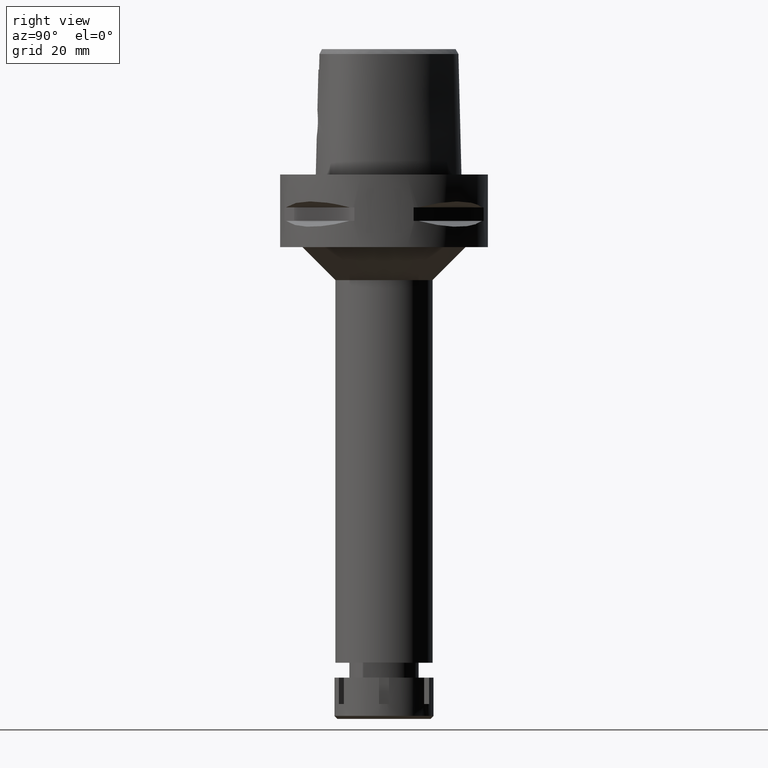
[diagram: clean part render]
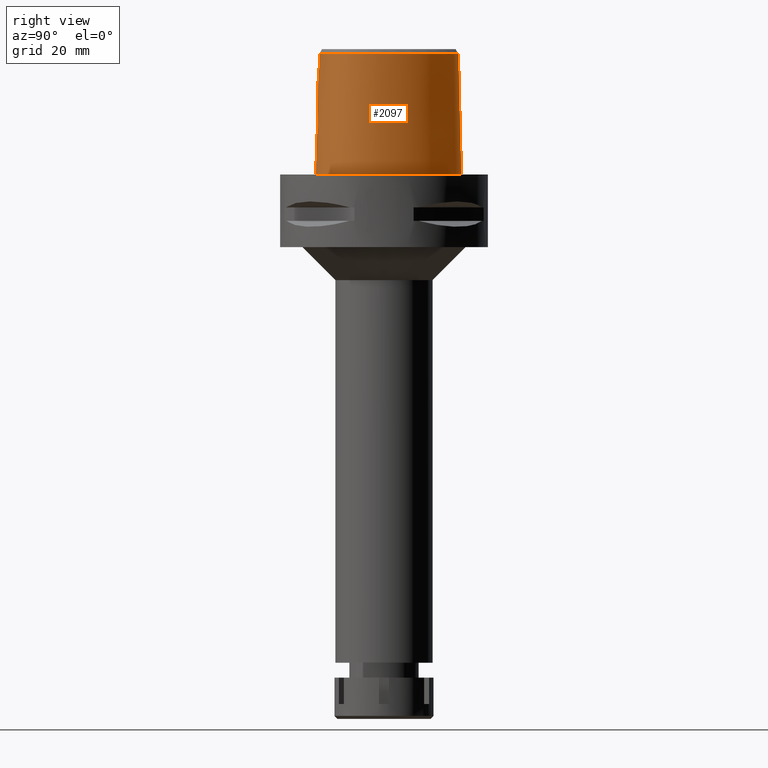
[diagram: same view with one face highlighted and labeled with its STEP entity id]
A machine part, right view. The second image highlights one B-rep face of the part: STEP entity #2097.
In plain terms, the highlighted face is a freeform B-spline surface patch.
Its self-contained STEP definition (entity closure, byte-faithful):
#9 = CARTESIAN_POINT ( 'NONE',  ( 4.049638794384611273, -20.05404294443376756, 15.43768675189062201 ) ) ;
#33 = CARTESIAN_POINT ( 'NONE',  ( 3.346839698137018093, -20.07044986577229650, 17.78445641054263859 ) ) ;
#37 = CARTESIAN_POINT ( 'NONE',  ( -0.4520500676069000301, -20.37458451791000158, 11.93048053677000020 ) ) ;
#65 = CARTESIAN_POINT ( 'NONE',  ( 19.86834436684000238, 4.339653687873999743, 37.25231677808000086 ) ) ;
#79 = CARTESIAN_POINT ( 'NONE',  ( 20.74942740880193526, 4.657187500000056879, 5.247538514829841461E-14 ) ) ;
#92 = CARTESIAN_POINT ( 'NONE',  ( 14.36818034194999960, -16.67825731690999902, 24.59139865742000097 ) ) ;
#103 = CARTESIAN_POINT ( 'NONE',  ( 21.55524826009751038, -8.996025390624708962, 5.247538514829841461E-14 ) ) ;
#117 = CARTESIAN_POINT ( 'NONE',  ( 21.99640701358000072, -0.2778990166448000454, -0.7304375838839000101 ) ) ;
#131 = CARTESIAN_POINT ( 'NONE',  ( 14.40795638957788327, 15.64093750000730765, 5.247538514829841461E-14 ) ) ;
#147 = CARTESIAN_POINT ( 'NONE',  ( 21.36961510885999971, -0.3886497729587999883, 24.59139865742000097 ) ) ;
#178 = CARTESIAN_POINT ( 'NONE',  ( 19.66427014433000053, -12.83600704532999970, -0.7304375838839000101 ) ) ;
#208 = CARTESIAN_POINT ( 'NONE',  ( -0.7217521646260000034, 23.47150798456999965, -0.7304375838839000101 ) ) ;
#223 = B_SPLINE_CURVE_WITH_KNOTS ( 'NONE', 3,
 ( #5394, #1516, #730, #4553 ),
 .UNSPECIFIED., .F., .F.,
 ( 4, 4 ),
 ( 0.0000000000000000000, 1.000000000000000000 ),
 .UNSPECIFIED. ) ;
#241 = CARTESIAN_POINT ( 'NONE',  ( 1.488283991415337182, -20.35025562760707629, 11.73330004244571612 ) ) ;
#267 = CARTESIAN_POINT ( 'NONE',  ( 7.108589361577945631, 20.52412316395161795, 36.52186680739947633 ) ) ;
#275 = CARTESIAN_POINT ( 'NONE',  ( 1.029075032816727298, -20.37061658179028711, 11.58059618244477029 ) ) ;
#277 = VERTEX_POINT ( 'NONE', #4362 ) ;
#305 = CARTESIAN_POINT ( 'NONE',  ( 3.507024072564136841, -20.16249844635295929, 13.46998661760523319 ) ) ;
#331 = CARTESIAN_POINT ( 'NONE',  ( -0.4685451983317999725, 23.16976078517999937, 11.93048053677000020 ) ) ;
#342 = EDGE_CURVE ( 'NONE', #3243, #2402, #4077, .T. ) ;
#353 = CARTESIAN_POINT ( 'NONE',  ( 3.671249151389730514, -19.60525176641679579, 34.94790639287000289 ) ) ;
#363 = CARTESIAN_POINT ( 'NONE',  ( 2.278271780665460433, -20.12965837756856047, 18.84858243060470073 ) ) ;
#365 = B_SPLINE_SURFACE_WITH_KNOTS ( 'NONE', 3, 3, ( 
 ( #1747, #2197, #3384, #4282 ),
 ( #423, #37, #3458, #4721 ),
 ( #5168, #1319, #3033, #902 ),
 ( #1917, #3536, #982, #3149 ),
 ( #2674, #4469, #3180, #4441 ),
 ( #2703, #525, #92, #3625 ),
 ( #5249, #3957, #4797, #3089 ),
 ( #4414, #2343, #552, #2282 ),
 ( #178, #497, #2254, #3512 ),
 ( #5276, #1374, #1801, #4886 ),
 ( #1829, #1888, #580, #1399 ),
 ( #2223, #2309, #1037, #3115 ),
 ( #3923, #1071, #2760, #4821 ),
 ( #950, #5338, #3984, #3213 ),
 ( #117, #4015, #147, #3595 ),
 ( #1854, #4356, #3564, #65 ),
 ( #5308, #5224, #1433, #4854 ),
 ( #1491, #614, #4048, #4917 ),
 ( #4383, #1008, #2728, #1461 ),
 ( #5004, #2034, #1158, #3737 ),
 ( #5453, #2823, #1642, #4195 ),
 ( #2430, #4558, #679, #1609 ),
 ( #649, #4142, #3324, #5482 ),
 ( #4530, #331, #2400, #706 ),
 ( #208, #2882, #5037, #4080 ) ),
 .UNSPECIFIED., .F., .F., .F.,
 ( 4, 1, 1, 1, 1, 1, 1, 1, 1, 1, 1, 1, 1, 1, 1, 1, 1, 1, 1, 1, 1, 1, 4 ),
 ( 4, 4 ),
 ( -0.008985960173571999957, 0.0000000000000000000, 0.08333333333337000770, 0.1666666666667000196, 0.2083333333333000081, 0.2500000000000000000, 0.2916666666666999919, 0.3124999999998999689, 0.3333333333332000326, 0.3541666666666000163, 0.3749999999998999689, 0.4166666666666000163, 0.4583333333332000326, 0.4999999999998999689, 0.5833333333331000015, 0.6666666666664999852, 0.7499999999998000488, 0.8333333333329999704, 0.8749999999997000177, 0.9166666666664000651, 0.9583333333329999704, 1.000000000000000000, 1.011710456763000199 ),
 ( 3.722950517314999950E-09, 0.9999998101296000419 ),
 .UNSPECIFIED. ) ;
#390 = CARTESIAN_POINT ( 'NONE',  ( 2.306577398820751412, -20.12825059843537190, 18.82915933036016298 ) ) ;
#407 = CARTESIAN_POINT ( 'NONE',  ( 14.22011350745966496, -16.41829354687769538, 36.52186680739947633 ) ) ;
#415 = CARTESIAN_POINT ( 'NONE',  ( 2.360818685576765663, -20.12553152717674010, 18.79091723954073601 ) ) ;
#423 = CARTESIAN_POINT ( 'NONE',  ( -0.4561077449369999592, -20.69106755381000085, -0.7304375838839000101 ) ) ;
#442 = CARTESIAN_POINT ( 'NONE',  ( 2.519944104988522060, -20.11739423957299167, 18.67124364917522783 ) ) ;
#456 = CARTESIAN_POINT ( 'NONE',  ( 3.796788964451000297E-11, 23.47499999999000053, 6.972200594645999482E-14 ) ) ;
#482 = CARTESIAN_POINT ( 'NONE',  ( 14.67337964420057617, -17.21410156249941892, 5.247538514829841461E-14 ) ) ;
#497 = CARTESIAN_POINT ( 'NONE',  ( 19.40779772571000095, -12.64961930136999868, 11.93048053677000020 ) ) ;
#525 = CARTESIAN_POINT ( 'NONE',  ( 14.52531265598000054, -16.95413752255999995, 11.93048053677000020 ) ) ;
#552 = CARTESIAN_POINT ( 'NONE',  ( 18.12052909021999980, -13.74516032104000018, 24.59139865742000097 ) ) ;
#556 = CARTESIAN_POINT ( 'NONE',  ( 3.736696120837999402, -19.67778323291999953, 31.80000004972999861 ) ) ;
#558 = CARTESIAN_POINT ( 'NONE',  ( -6.936546298697000348E-13, -20.38876923348000147, 11.44999999999999929 ) ) ;
#580 = CARTESIAN_POINT ( 'NONE',  ( 20.36913779878999975, -10.35391845994999827, 24.59139865742000097 ) ) ;
#604 = CARTESIAN_POINT ( 'NONE',  ( 20.67704204634530640, -8.734985285292992785, 36.52186680739947633 ) ) ;
#614 = CARTESIAN_POINT ( 'NONE',  ( 14.17879762240999852, 15.44741198412000038, 11.93048053677000020 ) ) ;
#649 = CARTESIAN_POINT ( 'NONE',  ( 0.6155340739163999153, 23.51883497514999988, -0.7304375838839000101 ) ) ;
#679 = CARTESIAN_POINT ( 'NONE',  ( 2.438150623175999954, 22.68791648783000170, 24.59139865742000097 ) ) ;
#706 = CARTESIAN_POINT ( 'NONE',  ( -0.4431573443658999856, 22.53713883459999678, 37.25231677808000086 ) ) ;
#729 = CARTESIAN_POINT ( 'NONE',  ( 19.55745538000554262, -11.29150212657557084, 36.52186680739947633 ) ) ;
#730 = CARTESIAN_POINT ( 'NONE',  ( 6.841552641078787438E-09, -20.08420636276018101, 23.63333344114130341 ) ) ;
#738 = CARTESIAN_POINT ( 'NONE',  ( 3.438614496833577228, -20.17221373686729535, 13.35618706787884946 ) ) ;
#765 = CARTESIAN_POINT ( 'NONE',  ( 1.512241740947312119, -20.34898939911309412, 11.74291348788425182 ) ) ;
#774 = VERTEX_POINT ( 'NONE', #1432 ) ;
#791 = CARTESIAN_POINT ( 'NONE',  ( 3.828843160387038314, -20.04436026481759825, 16.82309517697779810 ) ) ;
#823 = CARTESIAN_POINT ( 'NONE',  ( 3.918450559639469866, -20.04172061130668325, 16.53268210946603389 ) ) ;
#841 = CARTESIAN_POINT ( 'NONE',  ( 4.467522181835872352, -19.48130276147545814, 36.52186680739947633 ) ) ;
#848 = CARTESIAN_POINT ( 'NONE',  ( 2.915472835977094945, -20.09569895789859473, 18.31126718064890113 ) ) ;
#871 = CARTESIAN_POINT ( 'NONE',  ( 2.963663714774202873, -20.09292616174766977, 18.26078922981426444 ) ) ;
#875 = VECTOR ( 'NONE', #1590, 1000.000000000000114 ) ;
#902 = CARTESIAN_POINT ( 'NONE',  ( 1.836480386890999794, -19.76356528382999755, 37.25231677808000086 ) ) ;
#911 = CARTESIAN_POINT ( 'NONE',  ( 2.113823673067833475, -20.67499999999701288, 5.247538514829841461E-14 ) ) ;
#950 = CARTESIAN_POINT ( 'NONE',  ( 22.26285556298000046, -4.100361500063000264, -0.7304375838839000101 ) ) ;
#963 = CARTESIAN_POINT ( 'NONE',  ( 6.341471019211397220, -20.29812500000326736, 5.247538514829842092E-14 ) ) ;
#982 = CARTESIAN_POINT ( 'NONE',  ( 6.232237598194000583, -19.68961187433999882, 24.59139865742000097 ) ) ;
#1008 = CARTESIAN_POINT ( 'NONE',  ( 10.55288408568000058, 18.94467590724999795, 11.93048053677000020 ) ) ;
#1021 = CARTESIAN_POINT ( 'NONE',  ( 11.23259756728058711, -18.89324218749616335, 5.247538514829841461E-14 ) ) ;
#1031 = CARTESIAN_POINT ( 'NONE',  ( 21.32871516739703210, -4.105831245034191390, 36.52186680739947633 ) ) ;
#1037 = CARTESIAN_POINT ( 'NONE',  ( 20.96392254227999885, -8.820258326754998990, 24.59139865742000097 ) ) ;
#1071 = CARTESIAN_POINT ( 'NONE',  ( 21.76083716647999822, -6.805026050990000464, 11.93048053677000020 ) ) ;
#1080 = LINE ( 'NONE', #558, #4128 ) ;
#1103 = CARTESIAN_POINT ( 'NONE',  ( 3.714884036183550897, -20.13054316305255043, 13.88679975161858771 ) ) ;
#1127 = CARTESIAN_POINT ( 'NONE',  ( 4.757642236484984188, 21.67478320247553825, 36.52186680739947633 ) ) ;
#1132 = CARTESIAN_POINT ( 'NONE',  ( 1.538196023384282407, -20.34760033576342408, 11.75346900688112228 ) ) ;
#1158 = CARTESIAN_POINT ( 'NONE',  ( 7.259695479713999866, 20.78233571862999796, 24.59139865742000097 ) ) ;
#1187 = B_SPLINE_CURVE_WITH_KNOTS ( 'NONE', 3,
 ( #4110, #2910, #3711, #2370, #275, #4617, #3351, #3770, #241, #765, #2484, #1132, #3295, #5064, #3246, #2794, #2007, #5425, #4502, #1945, #1582, #1525, #1978, #2849, #3655, #4589, #738, #305, #5367, #4954, #3688, #1103, #3270, #2458, #5399, #1553, #4169, #1240, #4668, #4302, #3005, #9, #1670, #4641, #1293, #1742, #823, #4716, #791, #3477, #5163, #2540, #2566, #5508, #4328, #5115, #33, #1767, #1216, #3377, #2090, #871, #848, #1692, #2934, #4251, #2511, #3893, #442, #4223, #415, #390, #363, #2617, #3454, #1313, #3795, #5561, #5089, #2981, #2957, #2171 ),
 .UNSPECIFIED., .F., .F.,
 ( 4, 2, 2, 1, 1, 1, 2, 2, 2, 2, 2, 1, 1, 2, 2, 2, 2, 1, 1, 2, 2, 2, 2, 1, 2, 2, 2, 2, 1, 1, 1, 2, 2, 2, 2, 2, 1, 1, 2, 2, 2, 1, 2, 2, 2, 2, 2, 4 ),
 ( 0.0000000000000000000, 0.06249999999999680811, 0.09374999999999525380, 0.1093749999999945044, 0.1171874999999941436, 0.1210937499999939770, 0.1230468749999939909, 0.1249999999999940048, 0.1874999999999988620, 0.2187500000000011380, 0.2343750000000023315, 0.2421875000000029143, 0.2460937500000032196, 0.2480468750000034972, 0.2500000000000037748, 0.3125000000000161537, 0.3437500000000225375, 0.3593750000000257017, 0.3671875000000273115, 0.3710937500000281442, 0.3750000000000289213, 0.4375000000000430211, 0.4687500000000503486, 0.4843750000000539568, 0.4921875000000559552, 0.5000000000000579536, 0.5625000000000732747, 0.5937500000000809353, 0.6093750000000843769, 0.6171875000000860423, 0.6210937500000864864, 0.6230468750000863754, 0.6250000000000862643, 0.6875000000000813793, 0.7187500000000788258, 0.7343750000000773825, 0.7421875000000767164, 0.7460937500000764944, 0.7480468750000761613, 0.7500000000000758282, 0.7812500000000663913, 0.7968750000000615064, 0.8046875000000591749, 0.8125000000000567324, 0.8437500000000472955, 0.8593750000000425215, 0.8750000000000376366, 1.000000000000000000 ),
 .UNSPECIFIED. ) ;
#1216 = CARTESIAN_POINT ( 'NONE',  ( 3.128908175272120396, -20.08331652991464011, 18.07252174272647949 ) ) ;
#1218 = EDGE_CURVE ( 'NONE', #277, #1444, #4143, .T. ) ;
#1240 = CARTESIAN_POINT ( 'NONE',  ( 4.020733927300638832, -20.06862206084555922, 14.99753541347952002 ) ) ;
#1243 = EDGE_CURVE ( 'NONE', #3243, #1444, #5140, .T. ) ;
#1260 = CARTESIAN_POINT ( 'NONE',  ( 10.91891095220970698, -18.03046396093464310, 36.52186680739947633 ) ) ;
#1293 = CARTESIAN_POINT ( 'NONE',  ( 4.026066118139421057, -20.04247127186134492, 16.01314433202412246 ) ) ;
#1313 = CARTESIAN_POINT ( 'NONE',  ( 1.857884076962269537, -20.14843429220476168, 19.09932929553219338 ) ) ;
#1319 = CARTESIAN_POINT ( 'NONE',  ( 1.870063864393999964, -20.39691455660999964, 11.93048053677000020 ) ) ;
#1330 = CARTESIAN_POINT ( 'NONE',  ( -5.544119294011000731E-12, -20.67499999999999716, 7.264559324463998182E-14 ) ) ;
#1374 = CARTESIAN_POINT ( 'NONE',  ( 20.09084477999000029, -11.59945464139999949, 11.93048053677000020 ) ) ;
#1385 = CARTESIAN_POINT ( 'NONE',  ( 2.564517726975040102, 23.29328124999458538, 5.247538514829841461E-14 ) ) ;
#1399 = CARTESIAN_POINT ( 'NONE',  ( 20.07948506994999960, -10.22500070541000028, 37.25231677808000086 ) ) ;
#1407 = DIRECTION ( 'NONE',  ( -4.234890661638874812E-13, -0.02499051295389925070, -0.9996876883618708298 ) ) ;
#1432 = CARTESIAN_POINT ( 'NONE',  ( -5.544119294011000731E-12, -20.67499999999999716, 7.264559324463998182E-14 ) ) ;
#1433 = CARTESIAN_POINT ( 'NONE',  ( 17.53318585911999961, 10.12278934538000108, 24.59139865742000097 ) ) ;
#1444 = VERTEX_POINT ( 'NONE', #1633 ) ;
#1449 = CARTESIAN_POINT ( 'NONE',  ( 16.95889172594192829, -15.67838867187615293, 5.247538514829841461E-14 ) ) ;
#1461 = CARTESIAN_POINT ( 'NONE',  ( 10.14358078383000006, 18.45723421040999668, 37.25231677808000086 ) ) ;
#1491 = CARTESIAN_POINT ( 'NONE',  ( 14.42198651818000066, 15.65278600097999906, -0.7304375838839000101 ) ) ;
#1515 = ORIENTED_EDGE ( 'NONE', *, *, #1243, .F. ) ;
#1516 = CARTESIAN_POINT ( 'NONE',  ( 6.821577918709970238E-09, -19.98212988583128791, 27.71666688228296138 ) ) ;
#1518 = VERTEX_POINT ( 'NONE', #3541 ) ;
#1525 = CARTESIAN_POINT ( 'NONE',  ( 2.830086815859693239, -20.24589955386399964, 12.60289630791792703 ) ) ;
#1553 = CARTESIAN_POINT ( 'NONE',  ( 3.927835586672352441, -20.09244225005366147, 14.47776275463072437 ) ) ;
#1560 = EDGE_CURVE ( 'NONE', #5390, #774, #1080, .T. ) ;
#1575 = CARTESIAN_POINT ( 'NONE',  ( 19.88562079788709624, 4.345879946636352464, 36.52186680739947633 ) ) ;
#1582 = CARTESIAN_POINT ( 'NONE',  ( 2.808534909594999185, -20.24816297014837119, 12.58189563908294772 ) ) ;
#1590 = DIRECTION ( 'NONE',  ( 1.535577709270960426E-12, 0.02499051290971940689, -0.9996876883629751687 ) ) ;
#1609 = CARTESIAN_POINT ( 'NONE',  ( 2.373090332120999957, 22.37624354097000179, 37.25231677808000086 ) ) ;
#1633 = CARTESIAN_POINT ( 'NONE',  ( 3.637738219117000238, -19.56971420299000286, 36.52185956443999970 ) ) ;
#1642 = CARTESIAN_POINT ( 'NONE',  ( 4.868968453718999889, 21.95285545620999557, 24.59139865742000097 ) ) ;
#1670 = CARTESIAN_POINT ( 'NONE',  ( 4.049992771143990922, -20.05325330546017426, 15.46728849813523610 ) ) ;
#1675 = FACE_OUTER_BOUND ( 'NONE', #3819, .T. ) ;
#1692 = CARTESIAN_POINT ( 'NONE',  ( 2.894397137079437687, -20.09690797886509017, 18.33285490821691965 ) ) ;
#1742 = CARTESIAN_POINT ( 'NONE',  ( 3.950314841473462124, -20.04137577208483734, 16.40278404201346873 ) ) ;
#1747 = CARTESIAN_POINT ( 'NONE',  ( -0.6840631435738999677, -20.68668116151999925, -0.7304375838839000101 ) ) ;
#1767 = CARTESIAN_POINT ( 'NONE',  ( 3.266229437020721438, -20.07524359687617377, 17.89916302261439540 ) ) ;
#1801 = CARTESIAN_POINT ( 'NONE',  ( 19.81622831692000020, -11.44090475192999889, 24.59139865742000097 ) ) ;
#1805 = CARTESIAN_POINT ( 'NONE',  ( 2.503154195452158337, -19.81241979350688709, 31.80000012137769971 ) ) ;
#1812 = CARTESIAN_POINT ( 'NONE',  ( 5.098437017283345973, 22.52602539062325704, 5.247538514829841461E-14 ) ) ;
#1829 = CARTESIAN_POINT ( 'NONE',  ( 20.94844325647000360, -10.61175396900999957, -0.7304375838839000101 ) ) ;
#1854 = CARTESIAN_POINT ( 'NONE',  ( 20.76670354688000231, 4.663413653178999141, -0.7304375838839000101 ) ) ;
#1870 = CARTESIAN_POINT ( 'NONE',  ( 0.8548392423472973567, 23.47500000000328413, 5.247538514829841461E-14 ) ) ;
#1888 = CARTESIAN_POINT ( 'NONE',  ( 20.65879052763000345, -10.48283621448000069, 11.93048053677000020 ) ) ;
#1917 = CARTESIAN_POINT ( 'NONE',  ( 6.344715576272000668, -20.31619964730000305, -0.7304375838839000101 ) ) ;
#1945 = CARTESIAN_POINT ( 'NONE',  ( 2.758139611129263091, -20.25337176693246732, 12.53387256028085517 ) ) ;
#1978 = CARTESIAN_POINT ( 'NONE',  ( 2.844443223519995456, -20.24438370416207889, 12.61699047241434890 ) ) ;
#2007 = CARTESIAN_POINT ( 'NONE',  ( 2.570157103600570814, -20.27168289956678393, 12.36915238101241243 ) ) ;
#2034 = CARTESIAN_POINT ( 'NONE',  ( 7.420053159329000003, 21.05635748973000076, 11.93048053677000020 ) ) ;
#2090 = CARTESIAN_POINT ( 'NONE',  ( 3.003300070330046090, -20.09063219836847480, 18.21738618656902986 ) ) ;
#2097 = ADVANCED_FACE ( 'NONE', ( #1675 ), #365, .T. ) ;
#2115 = EDGE_CURVE ( 'NONE', #5390, #1518, #1187, .T. ) ;
#2171 = CARTESIAN_POINT ( 'NONE',  ( 0.0000000000000000000, -20.18628283968999781, 19.55000000000000071 ) ) ;
#2184 = CARTESIAN_POINT ( 'NONE',  ( 19.64947365864038176, -12.82525390625538364, 5.247538514829841461E-14 ) ) ;
#2197 = CARTESIAN_POINT ( 'NONE',  ( -0.6779734145189999506, -20.37023488106000002, 11.93048053677000020 ) ) ;
#2223 = CARTESIAN_POINT ( 'NONE',  ( 21.57281239033000020, -9.001246194501998588, -0.7304375838839000101 ) ) ;
#2254 = CARTESIAN_POINT ( 'NONE',  ( 19.15132530708999781, -12.46323155740999944, 24.59139865742000097 ) ) ;
#2282 = CARTESIAN_POINT ( 'NONE',  ( 17.88993660326999802, -13.52675024964000094, 37.25231677808000086 ) ) ;
#2285 = CARTESIAN_POINT ( 'NONE',  ( 2.041042029990999821E-08, -19.88004246002000031, 31.80000004972000127 ) ) ;
#2304 = CARTESIAN_POINT ( 'NONE',  ( -6.936546298697000348E-13, -20.38876923348000147, 11.44999999999999929 ) ) ;
#2309 = CARTESIAN_POINT ( 'NONE',  ( 21.26836746629999908, -8.910752260628999721, 11.93048053677000020 ) ) ;
#2333 = CARTESIAN_POINT ( 'NONE',  ( 18.90964962507914393, -12.28759713487687577, 36.52186680739947633 ) ) ;
#2343 = CARTESIAN_POINT ( 'NONE',  ( 18.35112157717000159, -13.96357039245000031, 11.93048053677000020 ) ) ;
#2365 = CARTESIAN_POINT ( 'NONE',  ( -1.813179551047000202E-11, 22.56201468012000078, 36.52186680743999858 ) ) ;
#2370 = CARTESIAN_POINT ( 'NONE',  ( 0.8992242105118642970, -20.37493864171640112, 11.54888304297134027 ) ) ;
#2400 = CARTESIAN_POINT ( 'NONE',  ( -0.4558512713489000223, 22.85344980989000163, 24.59139865742000097 ) ) ;
#2402 = VERTEX_POINT ( 'NONE', #3204 ) ;
#2410 = EDGE_CURVE ( 'NONE', #2402, #1518, #223, .T. ) ;
#2430 = CARTESIAN_POINT ( 'NONE',  ( 2.568271205285999947, 23.31126238154999797, -0.7304375838839000101 ) ) ;
#2451 = CARTESIAN_POINT ( 'NONE',  ( 17.27359236348845783, 9.972912859139666963, 36.52186680739947633 ) ) ;
#2458 = CARTESIAN_POINT ( 'NONE',  ( 3.734101483925078124, -20.12735841093752498, 13.93178299878139015 ) ) ;
#2484 = CARTESIAN_POINT ( 'NONE',  ( 1.528203702475598114, -20.34813849356515192, 11.74937770678980264 ) ) ;
#2511 = CARTESIAN_POINT ( 'NONE',  ( 2.772180003756187894, -20.10389984255201767, 18.45552640414263479 ) ) ;
#2540 = CARTESIAN_POINT ( 'NONE',  ( 3.756069937840027961, -20.04746516202720841, 17.01476473572080295 ) ) ;
#2559 = CARTESIAN_POINT ( 'NONE',  ( 3.637738219117000238, -19.56971420299000286, 36.52185956443999970 ) ) ;
#2566 = CARTESIAN_POINT ( 'NONE',  ( 3.749619629275788846, -20.04776342526934485, 17.03066201961066994 ) ) ;
#2578 = ORIENTED_EDGE ( 'NONE', *, *, #1560, .T. ) ;
#2617 = CARTESIAN_POINT ( 'NONE',  ( 2.145109563004964581, -20.13623476436783832, 18.93764899034225735 ) ) ;
#2635 = CARTESIAN_POINT ( 'NONE',  ( 20.93173252211384749, -10.60431640624865146, 5.247538514829841461E-14 ) ) ;
#2662 = CARTESIAN_POINT ( 'NONE',  ( 18.06826688526421520, 10.43171875000094850, 5.247538514829841461E-14 ) ) ;
#2674 = CARTESIAN_POINT ( 'NONE',  ( 11.23887130171000059, -18.91049775788000176, -0.7304375838839000101 ) ) ;
#2689 = CARTESIAN_POINT ( 'NONE',  ( 20.34961798556575729, -11.74885742187154847, 5.247538514829841461E-14 ) ) ;
#2703 = CARTESIAN_POINT ( 'NONE',  ( 14.68244497000999971, -17.23001772821000088, -0.7304375838839000101 ) ) ;
#2714 = CARTESIAN_POINT ( 'NONE',  ( 18.56841065141134095, -14.16937988280768224, 5.247538514829841461E-14 ) ) ;
#2728 = CARTESIAN_POINT ( 'NONE',  ( 10.34823243475999988, 18.70095505882999731, 24.59139865742000097 ) ) ;
#2744 = ORIENTED_EDGE ( 'NONE', *, *, #2854, .T. ) ;
#2760 = CARTESIAN_POINT ( 'NONE',  ( 21.44619304421999928, -6.759806566837999853, 24.59139865742000097 ) ) ;
#2794 = CARTESIAN_POINT ( 'NONE',  ( 2.397021025743683253, -20.28738711155108021, 12.23221059366157881 ) ) ;
#2823 = CARTESIAN_POINT ( 'NONE',  ( 4.987110684465000610, 22.24795284819000329, 11.93048053677000020 ) ) ;
#2843 = CARTESIAN_POINT ( 'NONE',  ( 10.15538781006591584, 18.47129526703211866, 36.52186680739947633 ) ) ;
#2849 = CARTESIAN_POINT ( 'NONE',  ( 2.852894669148333673, -20.24348581819178250, 12.62535896507192490 ) ) ;
#2854 = EDGE_CURVE ( 'NONE', #774, #4100, #4170, .T. ) ;
#2882 = CARTESIAN_POINT ( 'NONE',  ( -0.7025952887292000737, 23.15559749866999795, 11.93048053677000020 ) ) ;
#2910 = CARTESIAN_POINT ( 'NONE',  ( 0.2521712344239960824, -20.38876923348000858, 11.44999999999999751 ) ) ;
#2925 = CARTESIAN_POINT ( 'NONE',  ( 3.796788964451000297E-11, 23.47499999999000053, 6.972200594645999482E-14 ) ) ;
#2934 = CARTESIAN_POINT ( 'NONE',  ( 2.880252252186726203, -20.09771858834476532, 18.34723526985665387 ) ) ;
#2950 = CARTESIAN_POINT ( 'NONE',  ( 7.300578979382321698, -19.07170738131226173, 36.52186680739947633 ) ) ;
#2957 = CARTESIAN_POINT ( 'NONE',  ( 0.4954876483524821573, -20.18628283969000492, 19.54999999999999716 ) ) ;
#2981 = CARTESIAN_POINT ( 'NONE',  ( 1.028316776408453537, -20.17741541788669934, 19.45785258273985008 ) ) ;
#3005 = CARTESIAN_POINT ( 'NONE',  ( 4.048214080092304101, -20.05577732092616827, 15.37582243512925650 ) ) ;
#3033 = CARTESIAN_POINT ( 'NONE',  ( 1.853272125641999946, -20.08023992022000215, 24.59139865742000097 ) ) ;
#3050 = ORIENTED_EDGE ( 'NONE', *, *, #2115, .F. ) ;
#3065 = CARTESIAN_POINT ( 'NONE',  ( 1.251533272183256829, -19.88005341395084002, 31.80000012137769971 ) ) ;
#3089 = CARTESIAN_POINT ( 'NONE',  ( 16.38077695835999847, -14.94316464529999955, 37.25231677808000086 ) ) ;
#3115 = CARTESIAN_POINT ( 'NONE',  ( 20.65947761826000217, -8.729764392881000035, 37.25231677808000086 ) ) ;
#3149 = CARTESIAN_POINT ( 'NONE',  ( 6.175998609154999208, -19.37631798785999848, 37.25231677808000086 ) ) ;
#3180 = CARTESIAN_POINT ( 'NONE',  ( 11.02138184150000022, -18.31230465124999895, 24.59139865742000097 ) ) ;
#3204 = CARTESIAN_POINT ( 'NONE',  ( 2.041042029990999821E-08, -19.88004246002000031, 31.80000004972000127 ) ) ;
#3213 = CARTESIAN_POINT ( 'NONE',  ( 21.31039837235000078, -4.105938496789999448, 37.25231677808000086 ) ) ;
#3243 = VERTEX_POINT ( 'NONE', #4387 ) ;
#3246 = CARTESIAN_POINT ( 'NONE',  ( 2.282426779291145458, -20.29697268062908577, 12.15178042133221048 ) ) ;
#3270 = CARTESIAN_POINT ( 'NONE',  ( 3.728050960354355237, -20.12836678376847033, 13.91746580426512736 ) ) ;
#3295 = CARTESIAN_POINT ( 'NONE',  ( 1.734698794257270249, -20.33694537581526518, 11.83451168615765603 ) ) ;
#3324 = CARTESIAN_POINT ( 'NONE',  ( 0.5826623333973001140, 22.88447448257999994, 24.59139865742000097 ) ) ;
#3351 = CARTESIAN_POINT ( 'NONE',  ( 1.319918021587722201, -20.35862286549530964, 11.67005492354040719 ) ) ;
#3377 = CARTESIAN_POINT ( 'NONE',  ( 3.080402072178444861, -20.08615456365791729, 18.13051688291887942 ) ) ;
#3384 = CARTESIAN_POINT ( 'NONE',  ( -0.6718836854641999645, -20.05378860058999990, 24.59139865742000097 ) ) ;
#3424 = CARTESIAN_POINT ( 'NONE',  ( 16.39211273426746018, -14.95758104715374870, 36.52186680739947633 ) ) ;
#3454 = CARTESIAN_POINT ( 'NONE',  ( 2.033286809333374467, -20.14125756236685305, 19.00511957505245419 ) ) ;
#3458 = CARTESIAN_POINT ( 'NONE',  ( -0.4479923902767999899, -20.05810148200000143, 24.59139865742000097 ) ) ;
#3477 = CARTESIAN_POINT ( 'NONE',  ( 3.787481123649921066, -20.04605982308304135, 16.93510773912660028 ) ) ;
#3512 = CARTESIAN_POINT ( 'NONE',  ( 18.89485288846999822, -12.27684381345000020, 37.25231677808000086 ) ) ;
#3536 = CARTESIAN_POINT ( 'NONE',  ( 6.288476587232999293, -20.00290576081999916, 11.93048053677000020 ) ) ;
#3541 = CARTESIAN_POINT ( 'NONE',  ( 0.0000000000000000000, -20.18628283968999781, 19.55000000000000071 ) ) ;
#3548 = CARTESIAN_POINT ( 'NONE',  ( 22.24453907854481116, -4.100468750000057838, 5.247538514829841461E-14 ) ) ;
#3564 = CARTESIAN_POINT ( 'NONE',  ( 20.16779742685000087, 4.447573676309000135, 24.59139865742000097 ) ) ;
#3595 = CARTESIAN_POINT ( 'NONE',  ( 21.05621915649999920, -0.4440251511157999875, 37.25231677808000086 ) ) ;
#3625 = CARTESIAN_POINT ( 'NONE',  ( 14.21104802792000044, -16.40237711126000164, 37.25231677808000086 ) ) ;
#3655 = CARTESIAN_POINT ( 'NONE',  ( 3.047166273135561099, -20.22275119218791062, 12.81895386053285613 ) ) ;
#3680 = CARTESIAN_POINT ( 'NONE',  ( 0.7901461619506148226, 22.56201467849305331, 36.52186680739947633 ) ) ;
#3688 = CARTESIAN_POINT ( 'NONE',  ( 3.694855246837426943, -20.13382494402488021, 13.84093642423405512 ) ) ;
#3704 = CARTESIAN_POINT ( 'NONE',  ( 13.70645019738629067, 15.04851265230015223, 36.52186680739947633 ) ) ;
#3711 = CARTESIAN_POINT ( 'NONE',  ( 0.5103796633626155321, -20.38531158553910672, 11.47362071399299488 ) ) ;
#3737 = CARTESIAN_POINT ( 'NONE',  ( 7.099337800098999729, 20.50831394753000225, 37.25231677808000086 ) ) ;
#3770 = CARTESIAN_POINT ( 'NONE',  ( 1.432283198481785202, -20.35313925196403773, 11.71144805785014320 ) ) ;
#3795 = CARTESIAN_POINT ( 'NONE',  ( 1.798140377637001297, -20.15076695762397563, 19.12956592877852202 ) ) ;
#3819 = EDGE_LOOP ( 'NONE', ( #4131, #3991, #1515, #4082, #4046, #3050, #2578, #2744 ) ) ;
#3893 = CARTESIAN_POINT ( 'NONE',  ( 2.673773366373647598, -20.10928484861024401, 18.54484060076604734 ) ) ;
#3923 = CARTESIAN_POINT ( 'NONE',  ( 22.07548128874000071, -6.850245535142999387, -0.7304375838839000101 ) ) ;
#3957 = CARTESIAN_POINT ( 'NONE',  ( 16.77374385919999966, -15.44292476793999924, 11.93048053677000020 ) ) ;
#3967 = CARTESIAN_POINT ( 'NONE',  ( 22.05732874322499981, -6.847636718749559925, 5.247538514829841461E-14 ) ) ;
#3984 = CARTESIAN_POINT ( 'NONE',  ( 21.62788410256000304, -4.104079497880999128, 24.59139865742000097 ) ) ;
#3991 = ORIENTED_EDGE ( 'NONE', *, *, #1218, .T. ) ;
#3997 = CARTESIAN_POINT ( 'NONE',  ( 21.97832647786692206, -0.2810937500000119660, 5.247538514829841461E-14 ) ) ;
#4015 = CARTESIAN_POINT ( 'NONE',  ( 21.68301106122000022, -0.3332743948017999891, 11.93048053677000020 ) ) ;
#4046 = ORIENTED_EDGE ( 'NONE', *, *, #2410, .T. ) ;
#4048 = CARTESIAN_POINT ( 'NONE',  ( 13.93560872663999817, 15.24203796725999993, 24.59139865742000097 ) ) ;
#4071 = CARTESIAN_POINT ( 'NONE',  ( 21.07429999882368321, -0.4408303635841438473, 36.52186680739947633 ) ) ;
#4077 = B_SPLINE_CURVE_WITH_KNOTS ( 'NONE', 3,
 ( #556, #1805, #3065, #2285 ),
 .UNSPECIFIED., .F., .F.,
 ( 4, 4 ),
 ( 0.0000000000000000000, 1.000000000000000000 ),
 .UNSPECIFIED. ) ;
#4080 = CARTESIAN_POINT ( 'NONE',  ( -0.6642815369357000232, 22.52377652684999987, 37.25231677808000086 ) ) ;
#4082 = ORIENTED_EDGE ( 'NONE', *, *, #342, .T. ) ;
#4100 = VERTEX_POINT ( 'NONE', #2925 ) ;
#4110 = CARTESIAN_POINT ( 'NONE',  ( -6.936546298697000348E-13, -20.38876923348000147, 11.44999999999999929 ) ) ;
#4128 = VECTOR ( 'NONE', #1407, 1000.000000000000114 ) ;
#4131 = ORIENTED_EDGE ( 'NONE', *, *, #5079, .F. ) ;
#4142 = CARTESIAN_POINT ( 'NONE',  ( 0.5990982036569000302, 23.20165472886000302, 11.93048053677000020 ) ) ;
#4143 = B_SPLINE_CURVE_WITH_KNOTS ( 'NONE', 3,
 ( #2365, #3680, #4907, #1127, #267, #2843, #3704, #2451, #1575, #4071, #1031, #4462, #604, #4551, #729, #2333, #4269, #3424, #407, #1260, #2950, #841, #5474 ),
 .UNSPECIFIED., .F., .F.,
 ( 4, 1, 1, 1, 1, 1, 1, 1, 1, 1, 1, 1, 1, 1, 1, 1, 1, 1, 1, 1, 4 ),
 ( 0.0000000000000000000, 0.04382683003322055543, 0.08765366006602025306, 0.1314804900989252623, 0.1753073201318302854, 0.2629609801974298056, 0.3506146402631346026, 0.4382683003289445378, 0.5259219603945441968, 0.5697487904274490811, 0.6135756204602488273, 0.6574024504931539337, 0.6793158655095536957, 0.7012292805260588180, 0.7231426955424588021, 0.7450561105587534261, 0.7888829405916584214, 0.8327097706245634168, 0.8765366006573631630, 0.9641902607230995459, 1.000000000000000000 ),
 .UNSPECIFIED. ) ;
#4169 = CARTESIAN_POINT ( 'NONE',  ( 4.002668943114965572, -20.07400334792053087, 14.86854796123505729 ) ) ;
#4170 = B_SPLINE_CURVE_WITH_KNOTS ( 'NONE', 3,
 ( #1330, #911, #963, #1021, #482, #1449, #2714, #2184, #2689, #2635, #103, #3967, #3548, #3997, #79, #2662, #131, #4867, #5262, #1812, #1385, #1870, #456 ),
 .UNSPECIFIED., .F., .F.,
 ( 4, 1, 1, 1, 1, 1, 1, 1, 1, 1, 1, 1, 1, 1, 1, 1, 1, 1, 1, 1, 4 ),
 ( 0.0000000000000000000, 0.08333333333337000770, 0.1666666666667000196, 0.2083333333333000081, 0.2500000000000000000, 0.2916666666666999919, 0.3124999999998999689, 0.3333333333332000326, 0.3541666666666000163, 0.3749999999998999689, 0.4166666666666000163, 0.4583333333332000326, 0.4999999999998999689, 0.5833333333331000015, 0.6666666666664999852, 0.7499999999998000488, 0.8333333333329999704, 0.8749999999997000177, 0.9166666666664000651, 0.9583333333329999704, 1.000000000000000000 ),
 .UNSPECIFIED. ) ;
#4177 = CARTESIAN_POINT ( 'NONE',  ( -1.813179551047000202E-11, 22.56201468012000078, 36.52186680743999858 ) ) ;
#4195 = CARTESIAN_POINT ( 'NONE',  ( 4.750826222973000057, 21.65775806422999850, 37.25231677808000086 ) ) ;
#4223 = CARTESIAN_POINT ( 'NONE',  ( 2.441475652817581388, -20.12145690552322819, 18.73255419730240945 ) ) ;
#4251 = CARTESIAN_POINT ( 'NONE',  ( 2.871827064480840797, -20.09820085661024791, 18.35572725119102344 ) ) ;
#4269 = CARTESIAN_POINT ( 'NONE',  ( 17.90324024157857252, -13.53935104436359005, 36.52186680739947633 ) ) ;
#4282 = CARTESIAN_POINT ( 'NONE',  ( -0.6657939564092999474, -19.73734232013000067, 37.25231677808000086 ) ) ;
#4302 = CARTESIAN_POINT ( 'NONE',  ( 4.045002722263134842, -20.05852232572153326, 15.28257568076945461 ) ) ;
#4328 = CARTESIAN_POINT ( 'NONE',  ( 3.664531516593255933, -20.05177522854884486, 17.23667186347703506 ) ) ;
#4356 = CARTESIAN_POINT ( 'NONE',  ( 20.46725048685999937, 4.555493664744000526, 11.93048053677000020 ) ) ;
#4362 = CARTESIAN_POINT ( 'NONE',  ( -1.813179551047000202E-11, 22.56201468012000078, 36.52186680743999858 ) ) ;
#4383 = CARTESIAN_POINT ( 'NONE',  ( 10.75753573659999951, 19.18839675567999947, -0.7304375838839000101 ) ) ;
#4387 = CARTESIAN_POINT ( 'NONE',  ( 3.736696120837999402, -19.67778323291999953, 31.80000004972999861 ) ) ;
#4414 = CARTESIAN_POINT ( 'NONE',  ( 18.58171406411999982, -14.18198046384999955, -0.7304375838839000101 ) ) ;
#4441 = CARTESIAN_POINT ( 'NONE',  ( 10.91263711138999959, -18.01320809793000066, 37.25231677808000086 ) ) ;
#4462 = CARTESIAN_POINT ( 'NONE',  ( 21.14970177530675599, -6.717195943319820728, 36.52186680739947633 ) ) ;
#4469 = CARTESIAN_POINT ( 'NONE',  ( 11.13012657159999819, -18.61140120455999991, 11.93048053677000020 ) ) ;
#4502 = CARTESIAN_POINT ( 'NONE',  ( 2.714805267639514685, -20.25771215066832198, 12.49436786205451000 ) ) ;
#4530 = CARTESIAN_POINT ( 'NONE',  ( -0.4812391253148000092, 23.48607176047999801, -0.7304375838839000101 ) ) ;
#4551 = CARTESIAN_POINT ( 'NONE',  ( 20.09619608768760202, -10.23243839429846780, 36.52186680739947633 ) ) ;
#4553 = CARTESIAN_POINT ( 'NONE',  ( 0.0000000000000000000, -20.18628283968999781, 19.55000000000000071 ) ) ;
#4558 = CARTESIAN_POINT ( 'NONE',  ( 2.503210914230999951, 22.99958943469000161, 11.93048053677000020 ) ) ;
#4589 = CARTESIAN_POINT ( 'NONE',  ( 3.217746676397107208, -20.20246117936812880, 13.02641545331656481 ) ) ;
#4617 = CARTESIAN_POINT ( 'NONE',  ( 1.223097168518407996, -20.36283687392326414, 11.63851210756520160 ) ) ;
#4641 = CARTESIAN_POINT ( 'NONE',  ( 4.050056915598087670, -20.04604162830171532, 15.75352367833780143 ) ) ;
#4660 = CARTESIAN_POINT ( 'NONE',  ( 3.736696120837999402, -19.67778323291999953, 31.80000004972999861 ) ) ;
#4668 = CARTESIAN_POINT ( 'NONE',  ( 4.038472190140932838, -20.06169765068718647, 15.18805390983103010 ) ) ;
#4716 = CARTESIAN_POINT ( 'NONE',  ( 3.860417298872394376, -20.04330287886046946, 16.72646853219081819 ) ) ;
#4721 = CARTESIAN_POINT ( 'NONE',  ( -0.4439347129467000608, -19.74161844609999861, 37.25231677808000086 ) ) ;
#4797 = CARTESIAN_POINT ( 'NONE',  ( 16.57726040877999907, -15.19304470662000028, 24.59139865742000097 ) ) ;
#4821 = CARTESIAN_POINT ( 'NONE',  ( 21.13154892196000034, -6.714587082686000130, 37.25231677808000086 ) ) ;
#4854 = CARTESIAN_POINT ( 'NONE',  ( 17.25769859813999929, 9.963736582600999370, 37.25231677808000086 ) ) ;
#4867 = CARTESIAN_POINT ( 'NONE',  ( 10.74572891058538282, 19.17433593750135046, 5.247538514829841461E-14 ) ) ;
#4886 = CARTESIAN_POINT ( 'NONE',  ( 19.54161185385000010, -11.28235486244999919, 37.25231677808000086 ) ) ;
#4907 = CARTESIAN_POINT ( 'NONE',  ( 2.376843874102765763, 22.39422497744452656, 36.52186680739947633 ) ) ;
#4917 = CARTESIAN_POINT ( 'NONE',  ( 13.69241983086000047, 15.03666395039999948, 37.25231677808000086 ) ) ;
#4954 = CARTESIAN_POINT ( 'NONE',  ( 3.646186824048230690, -20.14160291728383356, 13.73489521538706448 ) ) ;
#5004 = CARTESIAN_POINT ( 'NONE',  ( 7.580410838944000140, 21.33037926083000002, -0.7304375838839000101 ) ) ;
#5037 = CARTESIAN_POINT ( 'NONE',  ( -0.6834384128323999219, 22.83968701276000246, 24.59139865742000097 ) ) ;
#5064 = CARTESIAN_POINT ( 'NONE',  ( 1.946932004676015460, -20.32307767112847330, 11.93880059974637220 ) ) ;
#5079 = EDGE_CURVE ( 'NONE', #277, #4100, #5489, .T. ) ;
#5089 = CARTESIAN_POINT ( 'NONE',  ( 1.615797869211351045, -20.15746371882925558, 19.21438957845422024 ) ) ;
#5115 = CARTESIAN_POINT ( 'NONE',  ( 3.560199545960235135, -20.05783334522597272, 17.44879127146176501 ) ) ;
#5140 = B_SPLINE_CURVE_WITH_KNOTS ( 'NONE', 3,
 ( #4660, #5500, #353, #2559 ),
 .UNSPECIFIED., .F., .F.,
 ( 4, 4 ),
 ( 0.0000000000000000000, 1.000000000000000000 ),
 .UNSPECIFIED. ) ;
#5163 = CARTESIAN_POINT ( 'NONE',  ( 3.765664028142179820, -20.04702608754462290, 16.99090190460270478 ) ) ;
#5168 = CARTESIAN_POINT ( 'NONE',  ( 1.886855603145999982, -20.71358919300000068, -0.7304375838839000101 ) ) ;
#5224 = CARTESIAN_POINT ( 'NONE',  ( 17.80867312010999726, 10.28184210816000110, 11.93048053677000020 ) ) ;
#5249 = CARTESIAN_POINT ( 'NONE',  ( 16.97022730962000026, -15.69280482925999820, -0.7304375838839000101 ) ) ;
#5262 = CARTESIAN_POINT ( 'NONE',  ( 7.571159434350826167, 21.31457031249730605, 5.247538514829841461E-14 ) ) ;
#5276 = CARTESIAN_POINT ( 'NONE',  ( 20.36546124305000305, -11.75800453087999919, -0.7304375838839000101 ) ) ;
#5308 = CARTESIAN_POINT ( 'NONE',  ( 18.08416038108999757, 10.44089487092999846, -0.7304375838839000101 ) ) ;
#5338 = CARTESIAN_POINT ( 'NONE',  ( 21.94536983276999820, -4.102220498972000584, 11.93048053677000020 ) ) ;
#5367 = CARTESIAN_POINT ( 'NONE',  ( 3.601204257517720997, -20.14847629606039092, 13.64574922402665003 ) ) ;
#5390 = VERTEX_POINT ( 'NONE', #2304 ) ;
#5394 = CARTESIAN_POINT ( 'NONE',  ( 2.041042029990999821E-08, -19.88004246002000031, 31.80000004972000127 ) ) ;
#5399 = CARTESIAN_POINT ( 'NONE',  ( 3.850336017801455846, -20.10779490602000408, 14.21200268958511614 ) ) ;
#5425 = CARTESIAN_POINT ( 'NONE',  ( 2.628069135184419647, -20.26622718584413718, 12.41751376643670568 ) ) ;
#5453 = CARTESIAN_POINT ( 'NONE',  ( 5.105252915211000442, 22.54305024016000303, -0.7304375838839000101 ) ) ;
#5474 = CARTESIAN_POINT ( 'NONE',  ( 3.637738219117000238, -19.56971420299000286, 36.52185956443999970 ) ) ;
#5482 = CARTESIAN_POINT ( 'NONE',  ( 0.5662264631378000068, 22.56729423628999953, 37.25231677808000086 ) ) ;
#5489 = LINE ( 'NONE', #4177, #875 ) ;
#5500 = CARTESIAN_POINT ( 'NONE',  ( 3.704239288984441103, -19.64128042389065598, 33.37395322129999897 ) ) ;
#5508 = CARTESIAN_POINT ( 'NONE',  ( 3.745542813155543715, -20.04795422077785005, 17.04060065017903014 ) ) ;
#5561 = CARTESIAN_POINT ( 'NONE',  ( 1.676170890441996519, -20.15531313274218306, 19.18748000605743087 ) ) ;